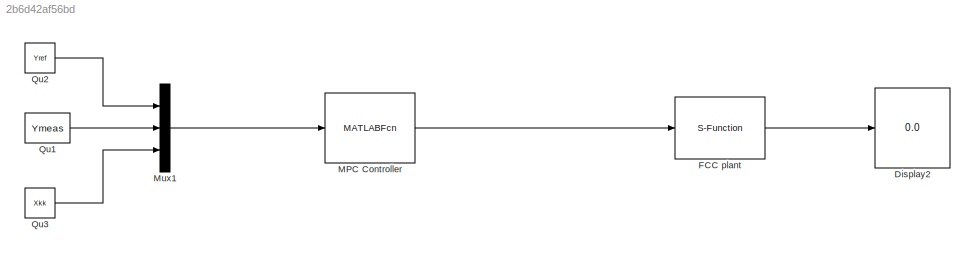
MODEL slx_2b6d42af56bd
KIND model
CONFIG AbsTol = auto
CONFIG FixedStep = auto
CONFIG MaxStep = auto
CONFIG MinStep = auto
CONFIG RelTol = 1e-3
CONFIG SampleTimeConstraint = Unconstrained
CONFIG Solver = VariableStepAuto
CONFIG SolverMode = Auto
CONFIG SolverName = VariableStepAuto
CONFIG StartTime = 0.0
CONFIG StopTime = 10.0
BLOCK [Display] Display2
  Decimation = 1
  Ports = [1]
BLOCK [S-Function] FCC plant
  EnableBusSupport = off
  FunctionName = yrates_sfcn
  Parameters = Y0
  Ports = [1, 1]
  SFunctionDeploymentMode = off
BLOCK [MATLABFcn] MPC Controller
  MATLABFcn = Controller
  Output1D = off
  Ports = [1, 1]
BLOCK [Mux] Mux1
  DisplayOption = bar
  Inputs = 3
  Ports = [3, 1]
BLOCK [Constant] Qu1
  Value = Ymeas
  VectorParams1D = off
BLOCK [Constant] Qu2
  Value = Yref
  VectorParams1D = off
BLOCK [Constant] Qu3
  Value = Xkk
  VectorParams1D = off
LINE FCC plant:1 -> Display2:1
LINE MPC Controller:1 -> FCC plant:1
LINE Mux1:1 -> MPC Controller:1
LINE Qu1:1 -> Mux1:2
LINE Qu2:1 -> Mux1:1
LINE Qu3:1 -> Mux1:3
